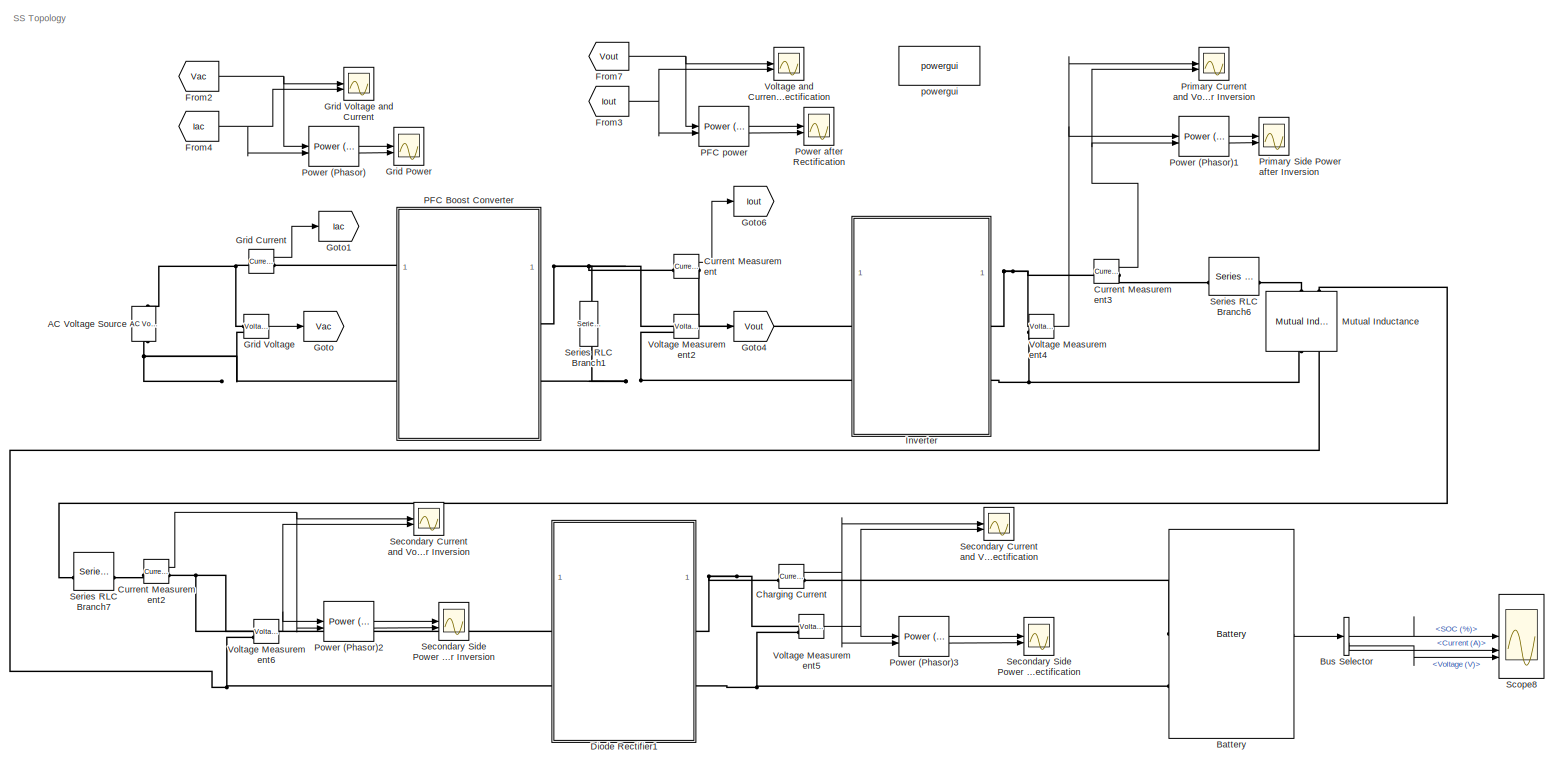
[diagram: root canvas - part 1/1, most of the canvas]
MODEL slx_037af9c4302e
KIND model
CONFIG AbsTol = auto
CONFIG EnableMultiTasking = off
CONFIG FixedStep = auto
CONFIG MaxStep = auto
CONFIG MinStep = auto
CONFIG RelTol = 1e-3
CONFIG SampleTimeConstraint = Unconstrained
CONFIG SolverName = VariableStepAuto
CONFIG StartTime = 0.0
CONFIG StopTime = 0.1
BLOCK [Reference] AC Voltage Source  REF=spsACVoltageSourceLib/AC Voltage Source
  SourceBlock = spsACVoltageSourceLib/AC Voltage Source
  SourceType = AC Voltage Source
BLOCK [Reference] Battery  REF=spsBatteryLib/Battery
  NameLocation = top
  SourceBlock = spsBatteryLib/Battery
  SourceType = Battery
BLOCK [BusSelector] Bus Selector
  OutputSignals = SOC (%),Current (A),Voltage (V)
BLOCK [Reference] Charging Current  REF=spsCurrentMeasurementLib/Current Measurement
  SourceBlock = spsCurrentMeasurementLib/Current Measurement
  SourceType = Current Measurement
  UserDataPersistent = on
BLOCK [Reference] Current Measurement  REF=spsCurrentMeasurementLib/Current Measurement
  SourceBlock = spsCurrentMeasurementLib/Current Measurement
  SourceType = Current Measurement
  UserDataPersistent = on
BLOCK [Reference] Current Measurement2  REF=spsCurrentMeasurementLib/Current Measurement
  SourceBlock = spsCurrentMeasurementLib/Current Measurement
  SourceType = Current Measurement
  UserDataPersistent = on
BLOCK [Reference] Current Measurement3  REF=spsCurrentMeasurementLib/Current Measurement
  SourceBlock = spsCurrentMeasurementLib/Current Measurement
  SourceType = Current Measurement
  UserDataPersistent = on
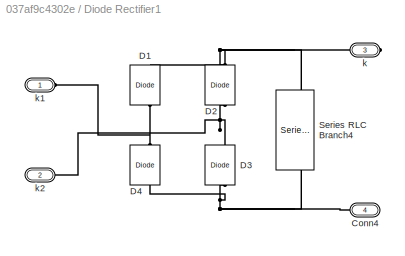
BLOCK [SubSystem] Diode Rectifier1
BLOCK [PMIOPort] Diode Rectifier1/Conn4
  NameLocation = top
  Port = 4
  Side = Right
BLOCK [Reference] Diode Rectifier1/D1  REF=spsDiodeLib/Diode
  NameLocation = right
  SourceBlock = spsDiodeLib/Diode
  SourceType = Diode
BLOCK [Reference] Diode Rectifier1/D2  REF=spsDiodeLib/Diode
  NameLocation = right
  SourceBlock = spsDiodeLib/Diode
  SourceType = Diode
BLOCK [Reference] Diode Rectifier1/D3  REF=spsDiodeLib/Diode
  NameLocation = right
  SourceBlock = spsDiodeLib/Diode
  SourceType = Diode
BLOCK [Reference] Diode Rectifier1/D4  REF=spsDiodeLib/Diode
  NameLocation = right
  SourceBlock = spsDiodeLib/Diode
  SourceType = Diode
BLOCK [Reference] Diode Rectifier1/Series RLC Branch4  REF=spsSeriesRLCBranchLib/Series RLC Branch
  NameLocation = left
  SourceBlock = spsSeriesRLCBranchLib/Series RLC Branch
  SourceType = Series RLC Branch
BLOCK [PMIOPort] Diode Rectifier1/k
  Port = 3
  Side = Right
BLOCK [PMIOPort] Diode Rectifier1/k1
  Side = Left
BLOCK [PMIOPort] Diode Rectifier1/k2
  Port = 2
  Side = Left
BLOCK [From] From2
  GotoTag = Vac
  TagVisibility = global
BLOCK [From] From3
  GotoTag = Iout
BLOCK [From] From4
  GotoTag = Iac
BLOCK [From] From7
  GotoTag = Vout
  TagVisibility = global
BLOCK [Goto] Goto
  GotoTag = Vac
  TagVisibility = global
BLOCK [Goto] Goto1
  GotoTag = Iac
BLOCK [Goto] Goto4
  GotoTag = Vout
  TagVisibility = global
BLOCK [Goto] Goto6
  GotoTag = Iout
BLOCK [Reference] Grid Current  REF=spsCurrentMeasurementLib/Current Measurement
  SourceBlock = spsCurrentMeasurementLib/Current Measurement
  SourceType = Current Measurement
  UserDataPersistent = on
BLOCK [Scope] Grid Power
  Floating = off
  NumInputPorts = 2
  ScopeSpecificationString = Simulink.scopes.TimeScopeBlockCfg('CurrentConfiguration', extmgr.ConfigurationSet(extmgr.Configuration('Core','General UI',true,'FigureColor',[1 1 1]),extmgr.Configuration('Core','Source UI',true),extmgr.Configuration('Sources','WiredSimulink',true,'DataLoggingVariableName','ScopeData2'),extmgr.Configuration('Visuals','Time Domain',true,'SerializedDisplays',{struct('MinYLimReal','-5374.56453','Max...<+2442ch>
BLOCK [Reference] Grid Voltage  REF=spsVoltageMeasurementLib/Voltage Measurement
  SourceBlock = spsVoltageMeasurementLib/Voltage Measurement
  SourceType = Voltage Measurement
  UserDataPersistent = on
BLOCK [Scope] Grid Voltage and Current
  Floating = off
  NumInputPorts = 2
  ScopeSpecificationString = Simulink.scopes.TimeScopeBlockCfg('CurrentConfiguration', extmgr.ConfigurationSet(extmgr.Configuration('Core','General UI',true,'FigureColor',[1 1 1]),extmgr.Configuration('Core','Source UI',true),extmgr.Configuration('Sources','WiredSimulink',true,'DataLoggingVariableName','ScopeData1'),extmgr.Configuration('Visuals','Time Domain',true,'SerializedDisplays',{struct('MinYLimReal','-412.54786','MaxY...<+1931ch>
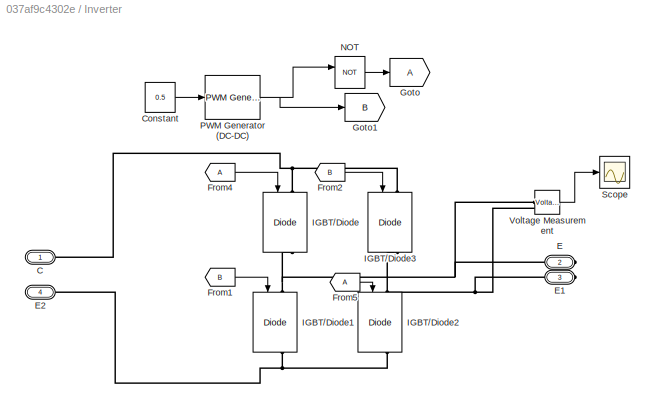
BLOCK [SubSystem] Inverter
BLOCK [PMIOPort] Inverter/C
  Side = Left
BLOCK [Constant] Inverter/Constant
  Value = 0.5
BLOCK [PMIOPort] Inverter/E
  Port = 2
  Side = Right
BLOCK [PMIOPort] Inverter/E1
  Port = 3
  Side = Right
BLOCK [PMIOPort] Inverter/E2
  Port = 4
  Side = Left
BLOCK [From] Inverter/From1
  GotoTag = B
BLOCK [From] Inverter/From2
  GotoTag = B
BLOCK [From] Inverter/From4
BLOCK [From] Inverter/From5
BLOCK [Goto] Inverter/Goto
BLOCK [Goto] Inverter/Goto1
  GotoTag = B
BLOCK [Reference] Inverter/IGBT//Diode  REF=spsIGBTDiodeLib/IGBT//Diode
  NameLocation = left
  SourceBlock = spsIGBTDiodeLib/IGBT//Diode
  SourceType = IGBT/Diode
BLOCK [Reference] Inverter/IGBT//Diode1  REF=spsIGBTDiodeLib/IGBT//Diode
  NameLocation = left
  SourceBlock = spsIGBTDiodeLib/IGBT//Diode
  SourceType = IGBT/Diode
BLOCK [Reference] Inverter/IGBT//Diode2  REF=spsIGBTDiodeLib/IGBT//Diode
  NameLocation = left
  SourceBlock = spsIGBTDiodeLib/IGBT//Diode
  SourceType = IGBT/Diode
BLOCK [Reference] Inverter/IGBT//Diode3  REF=spsIGBTDiodeLib/IGBT//Diode
  NameLocation = left
  SourceBlock = spsIGBTDiodeLib/IGBT//Diode
  SourceType = IGBT/Diode
BLOCK [Logic] Inverter/NOT
  AllPortsSameDT = off
  IconShape = distinctive
  Operator = NOT
  OutDataTypeStr = boolean
BLOCK [Reference] Inverter/PWM Generator (DC-DC)  REF=spsPWMGeneratorDCDCLib/PWM Generator
(DC-DC)
  SourceBlock = spsPWMGeneratorDCDCLib/PWM Generator\n(DC-DC)
  SourceType = PWM Generator (DC-DC)
BLOCK [Scope] Inverter/Scope
  Floating = off
  NumInputPorts = 1
  ScopeSpecificationString = Simulink.scopes.TimeScopeBlockCfg('CurrentConfiguration', extmgr.ConfigurationSet(extmgr.Configuration('Core','General UI',true),extmgr.Configuration('Core','Source UI',true),extmgr.Configuration('Sources','WiredSimulink',true,'DataLoggingVariableName','ScopeData2'),extmgr.Configuration('Visuals','Time Domain',true,'SerializedDisplays',{struct('MinYLimReal','-500.13189','MaxYLimReal','500.13541','...<+1491ch>
BLOCK [Reference] Inverter/Voltage Measurement  REF=spsVoltageMeasurementLib/Voltage Measurement
  SourceBlock = spsVoltageMeasurementLib/Voltage Measurement
  SourceType = Voltage Measurement
  UserDataPersistent = on
BLOCK [Reference] Mutual Inductance  REF=spsMutualInductanceLib/Mutual Inductance
  AttributesFormatString = \n
  NameLocation = left
  SourceBlock = spsMutualInductanceLib/Mutual Inductance
  SourceType = Mutual Inductance
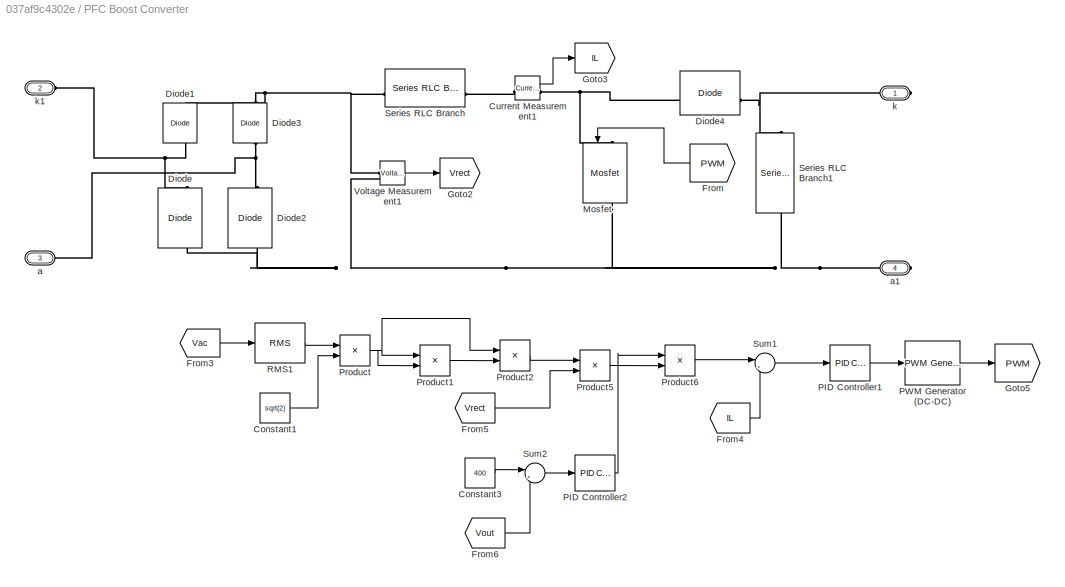
BLOCK [SubSystem] PFC Boost Converter
BLOCK [Constant] PFC Boost Converter/Constant1
  Value = sqrt(2)
BLOCK [Constant] PFC Boost Converter/Constant3
  Value = 400
BLOCK [Reference] PFC Boost Converter/Current Measurement1  REF=spsCurrentMeasurementLib/Current Measurement
  SourceBlock = spsCurrentMeasurementLib/Current Measurement
  SourceType = Current Measurement
  UserDataPersistent = on
BLOCK [Reference] PFC Boost Converter/Diode  REF=spsDiodeLib/Diode
  NameLocation = right
  SourceBlock = spsDiodeLib/Diode
  SourceType = Diode
BLOCK [Reference] PFC Boost Converter/Diode1  REF=spsDiodeLib/Diode
  NameLocation = right
  SourceBlock = spsDiodeLib/Diode
  SourceType = Diode
BLOCK [Reference] PFC Boost Converter/Diode2  REF=spsDiodeLib/Diode
  NameLocation = right
  SourceBlock = spsDiodeLib/Diode
  SourceType = Diode
BLOCK [Reference] PFC Boost Converter/Diode3  REF=spsDiodeLib/Diode
  NameLocation = right
  SourceBlock = spsDiodeLib/Diode
  SourceType = Diode
BLOCK [Reference] PFC Boost Converter/Diode4  REF=spsDiodeLib/Diode
  SourceBlock = spsDiodeLib/Diode
  SourceType = Diode
BLOCK [From] PFC Boost Converter/From
  GotoTag = PWM
  NameLocation = top
BLOCK [From] PFC Boost Converter/From3
  GotoTag = Vac
  TagVisibility = global
BLOCK [From] PFC Boost Converter/From4
  GotoTag = IL
BLOCK [From] PFC Boost Converter/From5
  GotoTag = Vrect
BLOCK [From] PFC Boost Converter/From6
  GotoTag = Vout
  TagVisibility = global
BLOCK [Goto] PFC Boost Converter/Goto2
  GotoTag = Vrect
BLOCK [Goto] PFC Boost Converter/Goto3
  GotoTag = IL
BLOCK [Goto] PFC Boost Converter/Goto5
  GotoTag = PWM
BLOCK [Reference] PFC Boost Converter/Mosfet  REF=spsMosfetLib/Mosfet
  NameLocation = left
  SourceBlock = spsMosfetLib/Mosfet
  SourceType = Mosfet
BLOCK [Reference] PFC Boost Converter/PID Controller1  REF=slpidlib/PID Controller
  SourceBlock = slpidlib/PID Controller
  SourceType = PID 1dof
BLOCK [Reference] PFC Boost Converter/PID Controller2  REF=slpidlib/PID Controller
  SourceBlock = slpidlib/PID Controller
  SourceType = PID 1dof
BLOCK [Reference] PFC Boost Converter/PWM Generator (DC-DC)  REF=spsPWMGeneratorDCDCLib/PWM Generator
(DC-DC)
  SourceBlock = spsPWMGeneratorDCDCLib/PWM Generator\n(DC-DC)
  SourceType = PWM Generator (DC-DC)
BLOCK [Product] PFC Boost Converter/Product
BLOCK [Product] PFC Boost Converter/Product1
BLOCK [Product] PFC Boost Converter/Product2
  Inputs = */
BLOCK [Product] PFC Boost Converter/Product5
BLOCK [Product] PFC Boost Converter/Product6
BLOCK [Reference] PFC Boost Converter/RMS1  REF=spsRMSLib/RMS
  LibrarySourceBlock = sps_lib/Sensors and Measurements/RMS
  SourceBlock = spsRMSLib/RMS
  SourceType = RMS
BLOCK [Reference] PFC Boost Converter/Series RLC Branch  REF=spsSeriesRLCBranchLib/Series RLC Branch
  SourceBlock = spsSeriesRLCBranchLib/Series RLC Branch
  SourceType = Series RLC Branch
BLOCK [Reference] PFC Boost Converter/Series RLC Branch1  REF=spsSeriesRLCBranchLib/Series RLC Branch
  NameLocation = left
  SourceBlock = spsSeriesRLCBranchLib/Series RLC Branch
  SourceType = Series RLC Branch
BLOCK [Sum] PFC Boost Converter/Sum1
  Inputs = |+-
BLOCK [Sum] PFC Boost Converter/Sum2
  Inputs = |+-
BLOCK [Reference] PFC Boost Converter/Voltage Measurement1  REF=spsVoltageMeasurementLib/Voltage Measurement
  SourceBlock = spsVoltageMeasurementLib/Voltage Measurement
  SourceType = Voltage Measurement
  UserDataPersistent = on
BLOCK [PMIOPort] PFC Boost Converter/a
  Port = 3
  Side = Left
BLOCK [PMIOPort] PFC Boost Converter/a1
  Port = 4
  Side = Right
BLOCK [PMIOPort] PFC Boost Converter/k
  Side = Right
BLOCK [PMIOPort] PFC Boost Converter/k1
  Port = 2
  Side = Left
BLOCK [Reference] PFC power  REF=spsPowerPhasorLib/Power
(Phasor)
  SourceBlock = spsPowerPhasorLib/Power\n(Phasor)
  SourceType = Power (Phasor)
BLOCK [Reference] Power (Phasor)  REF=spsPowerPhasorLib/Power
(Phasor)
  SourceBlock = spsPowerPhasorLib/Power\n(Phasor)
  SourceType = Power (Phasor)
BLOCK [Reference] Power (Phasor)1  REF=spsPowerPhasorLib/Power
(Phasor)
  SourceBlock = spsPowerPhasorLib/Power\n(Phasor)
  SourceType = Power (Phasor)
BLOCK [Reference] Power (Phasor)2  REF=spsPowerPhasorLib/Power
(Phasor)
  SourceBlock = spsPowerPhasorLib/Power\n(Phasor)
  SourceType = Power (Phasor)
BLOCK [Reference] Power (Phasor)3  REF=spsPowerPhasorLib/Power
(Phasor)
  SourceBlock = spsPowerPhasorLib/Power\n(Phasor)
  SourceType = Power (Phasor)
BLOCK [Scope] Power after Rectification
  Floating = off
  NumInputPorts = 2
  ScopeSpecificationString = Simulink.scopes.TimeScopeBlockCfg('CurrentConfiguration', extmgr.ConfigurationSet(extmgr.Configuration('Core','General UI',true,'FigureColor',[1 1 1]),extmgr.Configuration('Core','Source UI',true),extmgr.Configuration('Sources','WiredSimulink',true,'DataLoggingVariableName','ScopeData2'),extmgr.Configuration('Visuals','Time Domain',true,'SerializedDisplays',{struct('MinYLimReal','-5374.56453','Max...<+2517ch>
BLOCK [Scope] Primary Current and Voltage after Inversion
  Floating = off
  NumInputPorts = 2
  ScopeSpecificationString = Simulink.scopes.TimeScopeBlockCfg('CurrentConfiguration', extmgr.ConfigurationSet(extmgr.Configuration('Core','General UI',true,'FigureColor',[1 1 1]),extmgr.Configuration('Core','Source UI',true),extmgr.Configuration('Sources','WiredSimulink',true,'DataLoggingVariableName','ScopeData3'),extmgr.Configuration('Visuals','Time Domain',true,'SerializedDisplays',{struct('MinYLimReal','-530.77672','MaxY...<+2678ch>
BLOCK [Scope] Primary Side Power after Inversion
  Floating = off
  NumInputPorts = 2
  ScopeSpecificationString = Simulink.scopes.TimeScopeBlockCfg('CurrentConfiguration', extmgr.ConfigurationSet(extmgr.Configuration('Core','General UI',true,'FigureColor',[1 1 1]),extmgr.Configuration('Core','Source UI',true),extmgr.Configuration('Sources','WiredSimulink',true,'DataLoggingVariableName','ScopeData4'),extmgr.Configuration('Visuals','Time Domain',true,'SerializedDisplays',{struct('MinYLimReal','-5374.56453','Max...<+2517ch>
BLOCK [Scope] Scope8
  Floating = off
  NumInputPorts = 3
  ScopeSpecificationString = Simulink.scopes.TimeScopeBlockCfg('CurrentConfiguration', extmgr.ConfigurationSet(extmgr.Configuration('Core','General UI',true,'FigureColor',[1 1 1]),extmgr.Configuration('Core','Source UI',true),extmgr.Configuration('Sources','WiredSimulink',true,'DataLoggingVariableName','ScopeData9'),extmgr.Configuration('Visuals','Time Domain',true,'SerializedDisplays',{struct('MinYLimReal','89.99996','MaxYLi...<+3207ch>
BLOCK [Scope] Secondary Current and Voltage after Inversion
  Floating = off
  NumInputPorts = 2
  ScopeSpecificationString = Simulink.scopes.TimeScopeBlockCfg('CurrentConfiguration', extmgr.ConfigurationSet(extmgr.Configuration('Core','General UI',true,'FigureColor',[1 1 1]),extmgr.Configuration('Core','Source UI',true),extmgr.Configuration('Sources','WiredSimulink',true,'DataLoggingVariableName','ScopeData5'),extmgr.Configuration('Visuals','Time Domain',true,'SerializedDisplays',{struct('MinYLimReal','-34.45594','MaxYL...<+2680ch>
BLOCK [Scope] Secondary Current and Voltage after Rectification
  Floating = off
  NumInputPorts = 2
  ScopeSpecificationString = Simulink.scopes.TimeScopeBlockCfg('CurrentConfiguration', extmgr.ConfigurationSet(extmgr.Configuration('Core','General UI',true,'FigureColor',[1 1 1]),extmgr.Configuration('Core','Source UI',true),extmgr.Configuration('Sources','WiredSimulink',true,'DataLoggingVariableName','ScopeData7'),extmgr.Configuration('Visuals','Time Domain',true,'SerializedDisplays',{struct('MinYLimReal','-18291.10763','Ma...<+2537ch>
BLOCK [Scope] Secondary Side Power after Inversion
  Floating = off
  NumInputPorts = 2
  ScopeSpecificationString = Simulink.scopes.TimeScopeBlockCfg('CurrentConfiguration', extmgr.ConfigurationSet(extmgr.Configuration('Core','General UI',true,'FigureColor',[1 1 1]),extmgr.Configuration('Core','Source UI',true),extmgr.Configuration('Sources','WiredSimulink',true,'DataLoggingVariableName','ScopeData6'),extmgr.Configuration('Visuals','Time Domain',true,'SerializedDisplays',{struct('MinYLimReal','-5374.56453','Max...<+2517ch>
BLOCK [Scope] Secondary Side Power after Rectification
  Floating = off
  NumInputPorts = 2
  ScopeSpecificationString = Simulink.scopes.TimeScopeBlockCfg('CurrentConfiguration', extmgr.ConfigurationSet(extmgr.Configuration('Core','General UI',true,'FigureColor',[1 1 1]),extmgr.Configuration('Core','Source UI',true),extmgr.Configuration('Sources','WiredSimulink',true,'DataLoggingVariableName','ScopeData8'),extmgr.Configuration('Visuals','Time Domain',true,'SerializedDisplays',{struct('MinYLimReal','-5374.56453','Max...<+2517ch>
BLOCK [Reference] Series RLC Branch1  REF=spsSeriesRLCBranchLib/Series RLC Branch
  NameLocation = left
  SourceBlock = spsSeriesRLCBranchLib/Series RLC Branch
  SourceType = Series RLC Branch
BLOCK [Reference] Series RLC Branch6  REF=spsSeriesRLCBranchLib/Series RLC Branch
  SourceBlock = spsSeriesRLCBranchLib/Series RLC Branch
  SourceType = Series RLC Branch
BLOCK [Reference] Series RLC Branch7  REF=spsSeriesRLCBranchLib/Series RLC Branch
  SourceBlock = spsSeriesRLCBranchLib/Series RLC Branch
  SourceType = Series RLC Branch
BLOCK [Reference] Voltage Measurement2  REF=spsVoltageMeasurementLib/Voltage Measurement
  SourceBlock = spsVoltageMeasurementLib/Voltage Measurement
  SourceType = Voltage Measurement
  UserDataPersistent = on
BLOCK [Reference] Voltage Measurement4  REF=spsVoltageMeasurementLib/Voltage Measurement
  SourceBlock = spsVoltageMeasurementLib/Voltage Measurement
  SourceType = Voltage Measurement
  UserDataPersistent = on
BLOCK [Reference] Voltage Measurement5  REF=spsVoltageMeasurementLib/Voltage Measurement
  SourceBlock = spsVoltageMeasurementLib/Voltage Measurement
  SourceType = Voltage Measurement
  UserDataPersistent = on
BLOCK [Reference] Voltage Measurement6  REF=spsVoltageMeasurementLib/Voltage Measurement
  SourceBlock = spsVoltageMeasurementLib/Voltage Measurement
  SourceType = Voltage Measurement
  UserDataPersistent = on
BLOCK [Scope] Voltage and Current after Rectification
  Floating = off
  NumInputPorts = 2
  ScopeSpecificationString = Simulink.scopes.TimeScopeBlockCfg('CurrentConfiguration', extmgr.ConfigurationSet(extmgr.Configuration('Core','General UI',true,'FigureColor',[1 1 1]),extmgr.Configuration('Core','Source UI',true),extmgr.Configuration('Sources','WiredSimulink',true,'DataLoggingVariableName','ScopeData1'),extmgr.Configuration('Visuals','Time Domain',true,'SerializedDisplays',{struct('MinYLimReal','-53.07755','MaxYL...<+2564ch>
BLOCK [Reference] powergui  REF=spspowerguiLib/powergui
  Priority = 1
  SourceBlock = spspowerguiLib/powergui
  SourceType = PSB option menu block
ANNOTATION (root): SS Topology
LINE Battery:1 -> Bus Selector:1
LINE Bus Selector:1 -> Scope8:1
LINE Bus Selector:2 -> Scope8:2
LINE Bus Selector:3 -> Scope8:3
NET Charging Current:1 -> Power (Phasor)3:2, Secondary Current and Voltage after Rectification:1
NET Current Measurement2:1 -> Power (Phasor)2:2, Secondary Current and Voltage after Inversion:1
NET Current Measurement3:1 -> Power (Phasor)1:2, Primary Current and Voltage after Inversion:2
LINE Current Measurement:1 -> Goto6:1
NET From2:1 -> Grid Voltage and Current:1, Power (Phasor):1
NET From3:1 -> PFC power:2, Voltage and Current after Rectification:2
NET From4:1 -> Grid Voltage and Current:2, Power (Phasor):2
NET From7:1 -> PFC power:1, Voltage and Current after Rectification:1
LINE Grid Current:1 -> Goto1:1
LINE Grid Voltage:1 -> Goto:1
LINE Inverter/Constant:1 -> Inverter/PWM Generator (DC-DC):1
LINE Inverter/From1:1 -> Inverter/IGBT//Diode1:1
LINE Inverter/From2:1 -> Inverter/IGBT//Diode3:1
LINE Inverter/From4:1 -> Inverter/IGBT//Diode:1
LINE Inverter/From5:1 -> Inverter/IGBT//Diode2:1
LINE Inverter/NOT:1 -> Inverter/Goto:1
NET Inverter/PWM Generator (DC-DC):1 -> Inverter/Goto1:1, Inverter/NOT:1
LINE Inverter/Voltage Measurement:1 -> Inverter/Scope:1
LINE PFC Boost Converter/Constant1:1 -> PFC Boost Converter/Product:2
LINE PFC Boost Converter/Constant3:1 -> PFC Boost Converter/Sum2:1
LINE PFC Boost Converter/Current Measurement1:1 -> PFC Boost Converter/Goto3:1
LINE PFC Boost Converter/From3:1 -> PFC Boost Converter/RMS1:1
LINE PFC Boost Converter/From4:1 -> PFC Boost Converter/Sum1:2
LINE PFC Boost Converter/From5:1 -> PFC Boost Converter/Product5:2
LINE PFC Boost Converter/From6:1 -> PFC Boost Converter/Sum2:2
LINE PFC Boost Converter/From:1 -> PFC Boost Converter/Mosfet:1
LINE PFC Boost Converter/PID Controller1:1 -> PFC Boost Converter/PWM Generator (DC-DC):1
LINE PFC Boost Converter/PID Controller2:1 -> PFC Boost Converter/Product6:1
LINE PFC Boost Converter/PWM Generator (DC-DC):1 -> PFC Boost Converter/Goto5:1
LINE PFC Boost Converter/Product1:1 -> PFC Boost Converter/Product2:2
LINE PFC Boost Converter/Product2:1 -> PFC Boost Converter/Product5:1
LINE PFC Boost Converter/Product5:1 -> PFC Boost Converter/Product6:2
LINE PFC Boost Converter/Product6:1 -> PFC Boost Converter/Sum1:1
NET PFC Boost Converter/Product:1 -> PFC Boost Converter/Product1:1, PFC Boost Converter/Product1:2, PFC Boost Converter/Product2:1
LINE PFC Boost Converter/RMS1:1 -> PFC Boost Converter/Product:1
LINE PFC Boost Converter/Sum1:1 -> PFC Boost Converter/PID Controller1:1
LINE PFC Boost Converter/Sum2:1 -> PFC Boost Converter/PID Controller2:1
LINE PFC Boost Converter/Voltage Measurement1:1 -> PFC Boost Converter/Goto2:1
LINE PFC power:1 -> Power after Rectification:1
LINE PFC power:2 -> Power after Rectification:2
LINE Power (Phasor)1:1 -> Primary Side Power after Inversion:1
LINE Power (Phasor)1:2 -> Primary Side Power after Inversion:2
LINE Power (Phasor)2:1 -> Secondary Side Power after Inversion:1
LINE Power (Phasor)2:2 -> Secondary Side Power after Inversion:2
LINE Power (Phasor)3:1 -> Secondary Side Power after Rectification:1
LINE Power (Phasor)3:2 -> Secondary Side Power after Rectification:2
LINE Power (Phasor):1 -> Grid Power:1
LINE Power (Phasor):2 -> Grid Power:2
LINE Voltage Measurement2:1 -> Goto4:1
NET Voltage Measurement4:1 -> Power (Phasor)1:1, Primary Current and Voltage after Inversion:1
NET Voltage Measurement5:1 -> Power (Phasor)3:1, Secondary Current and Voltage after Rectification:2
NET Voltage Measurement6:1 -> Power (Phasor)2:1, Secondary Current and Voltage after Inversion:2
PNET net1: AC Voltage Source:LConn1 -- Grid Voltage:LConn2 -- PFC Boost Converter:LConn2
PNET net2: AC Voltage Source:RConn1 -- Grid Current:LConn1 -- Grid Voltage:LConn1
PLINE Battery:LConn1 -- Charging Current:RConn1
PNET net3: Battery:LConn2 -- Diode Rectifier1:RConn2 -- Voltage Measurement5:LConn2
PNET net4: Charging Current:LConn1 -- Diode Rectifier1:RConn1 -- Voltage Measurement5:LConn1
PLINE Current Measurement2:LConn1 -- Series RLC Branch7:RConn1
PNET net5: Current Measurement2:RConn1 -- Diode Rectifier1:LConn1 -- Voltage Measurement6:LConn1
PNET net6: Current Measurement3:LConn1 -- Inverter:RConn1 -- Voltage Measurement4:LConn1
PLINE Current Measurement3:RConn1 -- Series RLC Branch6:LConn1
PNET net7: Current Measurement:LConn1 -- PFC Boost Converter:RConn1 -- Series RLC Branch1:LConn1 -- Voltage Measurement2:LConn1
PLINE Current Measurement:RConn1 -- Inverter:LConn1
PNET net8: Diode Rectifier1/Conn4:RConn1 -- Diode Rectifier1/D3:LConn1 -- Diode Rectifier1/D4:LConn1 -- Diode Rectifier1/Series RLC Branch4:RConn1
PNET net9: Diode Rectifier1/D1:LConn1 -- Diode Rectifier1/D4:RConn1 -- Diode Rectifier1/k1:RConn1
PNET net10: Diode Rectifier1/D1:RConn1 -- Diode Rectifier1/D2:RConn1 -- Diode Rectifier1/Series RLC Branch4:LConn1 -- Diode Rectifier1/k:RConn1
PNET net11: Diode Rectifier1/D2:LConn1 -- Diode Rectifier1/D3:RConn1 -- Diode Rectifier1/k2:RConn1
PNET net12: Diode Rectifier1:LConn2 -- Mutual Inductance:RConn2 -- Voltage Measurement6:LConn2
PLINE Grid Current:RConn1 -- PFC Boost Converter:LConn1
PNET net13: Inverter/C:RConn1 -- Inverter/IGBT//Diode3:LConn1 -- Inverter/IGBT//Diode:LConn1
PNET net14: Inverter/E1:RConn1 -- Inverter/IGBT//Diode2:LConn1 -- Inverter/IGBT//Diode3:RConn1 -- Inverter/Voltage Measurement:LConn2
PNET net15: Inverter/E2:RConn1 -- Inverter/IGBT//Diode1:RConn1 -- Inverter/IGBT//Diode2:RConn1
PNET net16: Inverter/E:RConn1 -- Inverter/IGBT//Diode1:LConn1 -- Inverter/IGBT//Diode:RConn1 -- Inverter/Voltage Measurement:LConn1
PNET net17: Inverter:LConn2 -- PFC Boost Converter:RConn2 -- Series RLC Branch1:RConn1 -- Voltage Measurement2:LConn2
PNET net18: Inverter:RConn2 -- Mutual Inductance:RConn1 -- Voltage Measurement4:LConn2
PLINE Mutual Inductance:LConn1 -- Series RLC Branch6:RConn1
PLINE Mutual Inductance:LConn2 -- Series RLC Branch7:LConn1
PLINE PFC Boost Converter/Current Measurement1:LConn1 -- PFC Boost Converter/Series RLC Branch:RConn1
PNET net19: PFC Boost Converter/Current Measurement1:RConn1 -- PFC Boost Converter/Diode4:LConn1 -- PFC Boost Converter/Mosfet:LConn1
PNET net20: PFC Boost Converter/Diode1:LConn1 -- PFC Boost Converter/Diode:RConn1 -- PFC Boost Converter/k1:RConn1
PNET net21: PFC Boost Converter/Diode1:RConn1 -- PFC Boost Converter/Diode3:RConn1 -- PFC Boost Converter/Series RLC Branch:LConn1 -- PFC Boost Converter/Voltage Measurement1:LConn1
PNET net22: PFC Boost Converter/Diode2:LConn1 -- PFC Boost Converter/Diode:LConn1 -- PFC Boost Converter/Mosfet:RConn1 -- PFC Boost Converter/Series RLC Branch1:RConn1 -- PFC Boost Converter/Voltage Measurement1:LConn2 -- PFC Boost Converter/a1:RConn1
PNET net23: PFC Boost Converter/Diode2:RConn1 -- PFC Boost Converter/Diode3:LConn1 -- PFC Boost Converter/a:RConn1
PNET net24: PFC Boost Converter/Diode4:RConn1 -- PFC Boost Converter/Series RLC Branch1:LConn1 -- PFC Boost Converter/k:RConn1
note: NET lines group one-source signal fan-out (src -> all destinations, sorted); 1:1 wires keep LINE; PNET lines group multi-terminal physical nets as a canonical sorted terminal list (undirected conserving connections); 2-terminal nets keep the pairwise PLINE form
